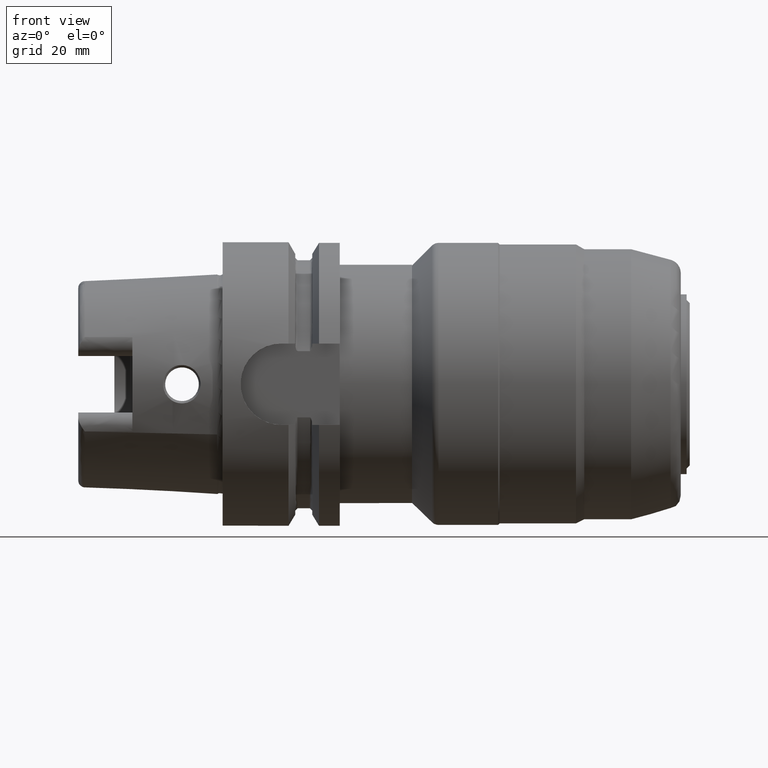
[diagram: clean part render]
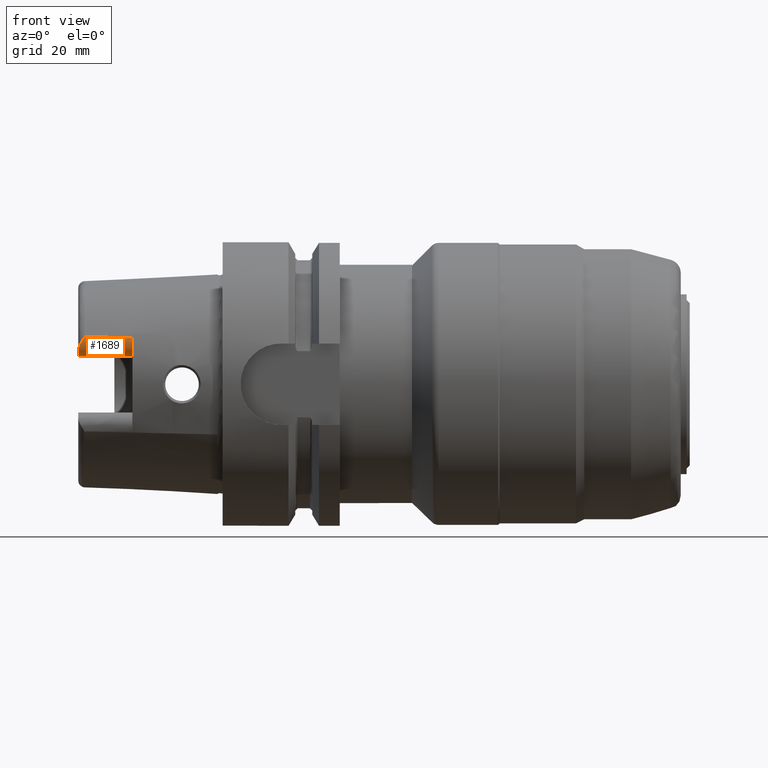
[diagram: same view with one face highlighted and labeled with its STEP entity id]
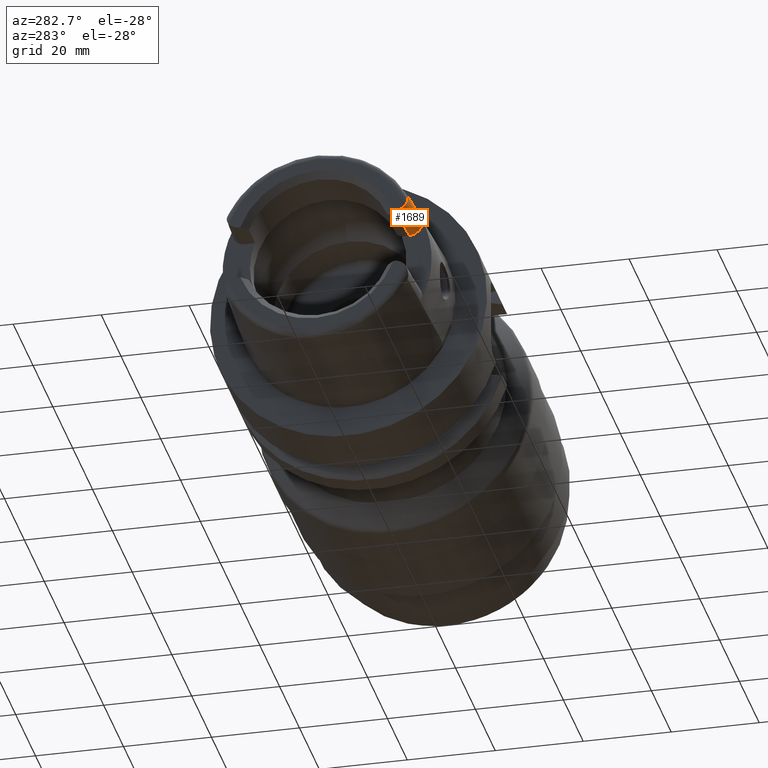
[diagram: same view with one face highlighted and labeled with its STEP entity id]
A machine part, front view. The second image highlights one B-rep face of the part: STEP entity #1689.
A second angle (auxiliary view) of the same face is appended — the face is thin or edge-on in the first view.
In plain terms, the highlighted face is a freeform B-spline surface patch.
Its self-contained STEP definition (entity closure, byte-faithful):
#59 = CARTESIAN_POINT ( 'NONE',  ( 12.00000000000000000, -18.36301340108916600, 6.269999999999999600 ) ) ;
#101 = CARTESIAN_POINT ( 'NONE',  ( 12.00000000000000400, -18.60939501637432500, 6.270000000000000500 ) ) ;
#141 = CARTESIAN_POINT ( 'NONE',  ( 3.748154912168640600, -22.60952989791995900, 6.269999999987582000 ) ) ;
#215 = CARTESIAN_POINT ( 'NONE',  ( 3.341869946698635500, -20.44698660979812000, 10.45998592916148300 ) ) ;
#225 = CARTESIAN_POINT ( 'NONE',  ( 8.783636793981610700, -20.76092733119836400, 10.44249121731212800 ) ) ;
#240 = ORIENTED_EDGE ( 'NONE', *, *, #633, .F. ) ;
#290 = CARTESIAN_POINT ( 'NONE',  ( -6.505213034913026600E-016, -20.02789380753071000, 7.462840741342546400 ) ) ;
#333 = CARTESIAN_POINT ( 'NONE',  ( -3.252606517456513300E-016, -18.58358496308043700, 6.402330039955509200 ) ) ;
#340 = CARTESIAN_POINT ( 'NONE',  ( -6.505213034913026600E-016, -20.02789380753071000, 7.462840741342546400 ) ) ;
#341 = EDGE_CURVE ( 'NONE', #399, #3340, #3214, .T. ) ;
#387 = CARTESIAN_POINT ( 'NONE',  ( -6.479802046495395600E-016, -20.11518797193723500, 7.583415540470038100 ) ) ;
#399 = VERTEX_POINT ( 'NONE', #3316 ) ;
#400 = CARTESIAN_POINT ( 'NONE',  ( 11.99999999999999800, -20.68413609072527100, 7.422551300769880500 ) ) ;
#410 = CARTESIAN_POINT ( 'NONE',  ( 11.99999999999999800, -21.23292727320523100, 8.772358841686422400 ) ) ;
#439 = CARTESIAN_POINT ( 'NONE',  ( 3.885674236720920500, -20.47876556283137700, 10.45810665937618800 ) ) ;
#492 = CARTESIAN_POINT ( 'NONE',  ( 1.425093574584161500, -20.33595230467517100, 10.46629516310663300 ) ) ;
#510 = CARTESIAN_POINT ( 'NONE',  ( 5.258662882695443100, -20.55774047591732800, 10.45376734632754500 ) ) ;
#537 = CARTESIAN_POINT ( 'NONE',  ( 0.0000000000000000000, -17.69012658156944400, 6.269999999999999600 ) ) ;
#572 = EDGE_CURVE ( 'NONE', #3374, #399, #2805, .T. ) ;
#623 = CARTESIAN_POINT ( 'NONE',  ( 1.425093574584161500, -20.33595230467517100, 10.46629516310663300 ) ) ;
#633 = EDGE_CURVE ( 'NONE', #3340, #3073, #2512, .T. ) ;
#671 = CARTESIAN_POINT ( 'NONE',  ( 12.00000000000000200, -21.25573649662585800, 9.257612388113729600 ) ) ;
#676 = CARTESIAN_POINT ( 'NONE',  ( 4.029494582987272400, -17.91696782187682400, 6.269999999999998700 ) ) ;
#692 = CARTESIAN_POINT ( 'NONE',  ( -0.3387765748013149000, -22.40769901511426100, 6.270000000000000500 ) ) ;
#704 = CARTESIAN_POINT ( 'NONE',  ( 7.988192219368240600, -20.71545286246741600, 10.44491167263090100 ) ) ;
#828 = CARTESIAN_POINT ( 'NONE',  ( -1.323352746723396100E-013, -17.91912340546483100, 6.269999999999998700 ) ) ;
#895 = CARTESIAN_POINT ( 'NONE',  ( -3.252606517456513300E-016, -19.73963224543917100, 7.110603567158997300 ) ) ;
#938 = CARTESIAN_POINT ( 'NONE',  ( 11.99999999999999800, -19.55259490983903700, 6.515125839770863800 ) ) ;
#948 = CARTESIAN_POINT ( 'NONE',  ( 12.00000000000000000, -18.36301340108916600, 6.269999999999999600 ) ) ;
#970 = CARTESIAN_POINT ( 'NONE',  ( 12.09075674788072900, -20.95098270118354800, 10.43210023133965900 ) ) ;
#984 = CARTESIAN_POINT ( 'NONE',  ( 12.00000000000000200, -20.94396221280171500, 7.840666298896443300 ) ) ;
#1067 = CARTESIAN_POINT ( 'NONE',  ( 8.581657674847974700, -18.17205322306832800, 6.269999999999999600 ) ) ;
#1114 = CARTESIAN_POINT ( 'NONE',  ( -3.252606517456416700E-016, -18.14354991871605100, 6.296845030712908900 ) ) ;
#1175 = FACE_OUTER_BOUND ( 'NONE', #3020, .T. ) ;
#1196 = CARTESIAN_POINT ( 'NONE',  ( 0.2386010109885093000, -20.52520417979194900, 8.489997996593771700 ) ) ;
#1208 = CARTESIAN_POINT ( 'NONE',  ( 1.259743463659515300, -20.43869070353619600, 10.24860863998683800 ) ) ;
#1236 = B_SPLINE_CURVE_WITH_KNOTS ( 'NONE', 3,
 ( #2875, #828, #1114, #333, #3188, #3229, #2333, #895, #2934, #290 ),
 .UNSPECIFIED., .F., .F.,
 ( 4, 2, 2, 2, 4 ),
 ( 0.0000000000000000000, 0.0006772458117095717800, 0.001354491623419143600, 0.002031737435128715200, 0.002708983246838287100 ),
 .UNSPECIFIED. ) ;
#1250 = CARTESIAN_POINT ( 'NONE',  ( 8.132012564306442900, -18.14696609093865100, 6.269999999999998700 ) ) ;
#1272 = CARTESIAN_POINT ( 'NONE',  ( 12.00000000000000200, -19.32173134252615300, 6.422874775357647600 ) ) ;
#1358 = CARTESIAN_POINT ( 'NONE',  ( 0.0000000000000000000, -17.69012658156944400, 6.269999999999999600 ) ) ;
#1476 = CARTESIAN_POINT ( 'NONE',  ( 0.3577103462755238400, -20.57930911668218200, 8.753505207697399400 ) ) ;
#1641 = VERTEX_POINT ( 'NONE', #2248 ) ;
#1689 = ADVANCED_FACE ( 'NONE', ( #1175 ), #2170, .T. ) ;
#1798 = ORIENTED_EDGE ( 'NONE', *, *, #572, .F. ) ;
#1894 = ORIENTED_EDGE ( 'NONE', *, *, #341, .F. ) ;
#2112 = CARTESIAN_POINT ( 'NONE',  ( 1.425093574584161500, -20.33595230467517100, 10.46629516310663300 ) ) ;
#2137 = CARTESIAN_POINT ( 'NONE',  ( 5.163348247061774600, -17.98050305208508300, 6.269999999999999600 ) ) ;
#2142 = CARTESIAN_POINT ( 'NONE',  ( 12.00000000000000200, -21.23588942728140300, 9.505079572619866500 ) ) ;
#2170 =( BOUNDED_SURFACE ( )  B_SPLINE_SURFACE ( 3, 2, ( 
 ( #2689, #692, #2991 ),
 ( #676, #141, #439 ),
 ( #1250, #2716, #704 ),
 ( #2699, #3599, #970 ) ),
 .UNSPECIFIED., .F., .F., .T. ) 
 B_SPLINE_SURFACE_WITH_KNOTS ( ( 4, 4 ),
 ( 3, 3 ),
 ( 0.03158078107494828600, 0.04390765626987078900 ),
 ( 0.0000000000000000000, 1.000000000000000000 ),
 .UNSPECIFIED. ) 
 GEOMETRIC_REPRESENTATION_ITEM ( )  RATIONAL_B_SPLINE_SURFACE ( (
 ( 1.000000000000000000, 0.5201292171547011700, 1.000000000000000000),
 ( 1.000000000000000000, 0.5224014603030301400, 1.000000000000000000),
 ( 1.000000000000000000, 0.5245887701817078000, 1.000000000000000000),
 ( 1.000000000000000000, 0.5267002508840383800, 1.000000000000000000) ) ) 
 REPRESENTATION_ITEM ( '' )  SURFACE ( )  );
#2226 = CARTESIAN_POINT ( 'NONE',  ( 1.745075363055395700, -17.78830385338170600, 6.269999999999999600 ) ) ;
#2233 = CARTESIAN_POINT ( 'NONE',  ( 10.39181319841948800, -20.85343877464780600, 10.43740795638908200 ) ) ;
#2240 = ORIENTED_EDGE ( 'NONE', *, *, #3106, .F. ) ;
#2248 = CARTESIAN_POINT ( 'NONE',  ( -6.505213034913026600E-016, -20.02789380753071000, 7.462840741342546400 ) ) ;
#2317 = ORIENTED_EDGE ( 'NONE', *, *, #2707, .F. ) ;
#2333 = CARTESIAN_POINT ( 'NONE',  ( -3.252606517456513800E-016, -19.39284368326926300, 6.814137027092452400 ) ) ;
#2334 = B_SPLINE_CURVE_WITH_KNOTS ( 'NONE', 3,
 ( #340, #387, #2971, #2936, #2386, #1196, #1476, #2681, #2352, #2644, #1208, #623 ),
 .UNSPECIFIED., .F., .F.,
 ( 4, 2, 2, 2, 2, 4 ),
 ( 0.0000000000000000000, 0.0004380490373369658000, 0.0008760980746739316000, 0.001752196149347858700, 0.002628294224021785700, 0.003504392298695712500 ),
 .UNSPECIFIED. ) ;
#2352 = CARTESIAN_POINT ( 'NONE',  ( 0.7779531097076417500, -20.60461047007315100, 9.525875474481859200 ) ) ;
#2386 = CARTESIAN_POINT ( 'NONE',  ( 0.1038067204943338000, -20.38319481973563500, 8.093843534889632700 ) ) ;
#2401 = CARTESIAN_POINT ( 'NONE',  ( 12.00000000000000200, -18.85033868554397800, 6.301009723774567000 ) ) ;
#2413 = CARTESIAN_POINT ( 'NONE',  ( 11.99999999999999800, -21.05562004604616900, 10.21183493800068500 ) ) ;
#2416 = CARTESIAN_POINT ( 'NONE',  ( 0.5816907171227333500, -17.72287136225899600, 6.269999999999999600 ) ) ;
#2512 = B_SPLINE_CURVE_WITH_KNOTS ( 'NONE', 3,
 ( #3753, #1067, #2137, #2226, #3097, #2416, #1358 ),
 .UNSPECIFIED., .F., .F.,
 ( 4, 3, 4 ),
 ( 0.0000000000000000000, 0.01027101603414382600, 0.01201885089451275500 ),
 .UNSPECIFIED. ) ;
#2644 = CARTESIAN_POINT ( 'NONE',  ( 1.092129385417579800, -20.51529751896554300, 10.01150061822095200 ) ) ;
#2674 = CARTESIAN_POINT ( 'NONE',  ( 12.00000000000000200, -21.18990613798611000, 8.527671104674306300 ) ) ;
#2681 = CARTESIAN_POINT ( 'NONE',  ( 0.6293540231611809400, -20.61922058804772800, 9.275456135114746200 ) ) ;
#2689 = CARTESIAN_POINT ( 'NONE',  ( -0.07296872291780383300, -17.68601889457678300, 6.269999999999998700 ) ) ;
#2699 = CARTESIAN_POINT ( 'NONE',  ( 12.23457708467913800, -18.37611674204665100, 6.269999999999998700 ) ) ;
#2707 = EDGE_CURVE ( 'NONE', #1641, #3374, #2334, .T. ) ;
#2711 = CARTESIAN_POINT ( 'NONE',  ( 11.99999999999999800, -21.04502711057990500, 8.062371556099122900 ) ) ;
#2716 = CARTESIAN_POINT ( 'NONE',  ( 7.854196063361067500, -22.81270895710165500, 6.269999999999998700 ) ) ;
#2805 = B_SPLINE_CURVE_WITH_KNOTS ( 'NONE', 3,
 ( #492, #215, #510, #2821, #225, #2233, #2878 ),
 .UNSPECIFIED., .F., .F.,
 ( 4, 3, 4 ),
 ( 2.168404344971008900E-019, 0.005760000065658932600, 0.01059252933609166500 ),
 .UNSPECIFIED. ) ;
#2821 = CARTESIAN_POINT ( 'NONE',  ( 7.175471350384727400, -20.66822931768686500, 10.44763561879608600 ) ) ;
#2875 = CARTESIAN_POINT ( 'NONE',  ( 0.0000000000000000000, -17.69012658156944400, 6.269999999999999600 ) ) ;
#2878 = CARTESIAN_POINT ( 'NONE',  ( 12.00000000000000000, -20.94577213106061500, 10.43238370813136500 ) ) ;
#2934 = CARTESIAN_POINT ( 'NONE',  ( -3.252606517456513800E-016, -19.89360027038943800, 7.277348201548884200 ) ) ;
#2936 = CARTESIAN_POINT ( 'NONE',  ( 0.06662923243941382100, -20.32544289270258300, 7.961890521594395600 ) ) ;
#2971 = CARTESIAN_POINT ( 'NONE',  ( 0.01502828065847963200, -20.19163665246091500, 7.707328587207976000 ) ) ;
#2991 = CARTESIAN_POINT ( 'NONE',  ( -0.2167890597162134800, -20.24077271534674300, 10.47172184138133700 ) ) ;
#3005 = CARTESIAN_POINT ( 'NONE',  ( 12.00000000000000200, -20.53053151178566800, 7.234202413463278500 ) ) ;
#3020 = EDGE_LOOP ( 'NONE', ( #2240, #240, #1894, #1798, #2317 ) ) ;
#3073 = VERTEX_POINT ( 'NONE', #537 ) ;
#3097 = CARTESIAN_POINT ( 'NONE',  ( 1.163382511329651600, -17.75559701463976100, 6.269999999999999600 ) ) ;
#3106 = EDGE_CURVE ( 'NONE', #3073, #1641, #1236, .T. ) ;
#3188 = CARTESIAN_POINT ( 'NONE',  ( -3.252606517456513800E-016, -18.80042124702137900, 6.482335560069853600 ) ) ;
#3214 = B_SPLINE_CURVE_WITH_KNOTS ( 'NONE', 3,
 ( #3582, #2413, #3569, #2142, #671, #410, #2674, #2711, #984, #400, #3005, #3553, #3255, #938, #1272, #2401, #101, #948 ),
 .UNSPECIFIED., .F., .F.,
 ( 4, 2, 2, 2, 2, 2, 2, 2, 4 ),
 ( 0.0000000000000000000, 0.0007286863769351804200, 0.001457372753870360800, 0.002186059130805541500, 0.002914745507740721700, 0.003643431884675901900, 0.004372118261611083000, 0.005100804638546263200, 0.005829491015481443400 ),
 .UNSPECIFIED. ) ;
#3229 = CARTESIAN_POINT ( 'NONE',  ( -3.252606517456512800E-016, -19.20291588908708700, 6.687482773509018800 ) ) ;
#3255 = CARTESIAN_POINT ( 'NONE',  ( 12.00000000000000200, -19.97732540815814800, 6.750965321922311800 ) ) ;
#3316 = CARTESIAN_POINT ( 'NONE',  ( 12.00000000000000000, -20.94577213106061500, 10.43238370813136500 ) ) ;
#3340 = VERTEX_POINT ( 'NONE', #59 ) ;
#3374 = VERTEX_POINT ( 'NONE', #2112 ) ;
#3553 = CARTESIAN_POINT ( 'NONE',  ( 11.99999999999999800, -20.17725965364653000, 6.897767765092852200 ) ) ;
#3569 = CARTESIAN_POINT ( 'NONE',  ( 12.00000000000000200, -21.13524235319293600, 9.982152324843793800 ) ) ;
#3582 = CARTESIAN_POINT ( 'NONE',  ( 12.00000000000000000, -20.94577213106061500, 10.43238370813136500 ) ) ;
#3599 = CARTESIAN_POINT ( 'NONE',  ( 11.97536021882610100, -23.01696725580035600, 6.269999999999998700 ) ) ;
#3753 = CARTESIAN_POINT ( 'NONE',  ( 12.00000000000000000, -18.36301340108916600, 6.269999999999999600 ) ) ;